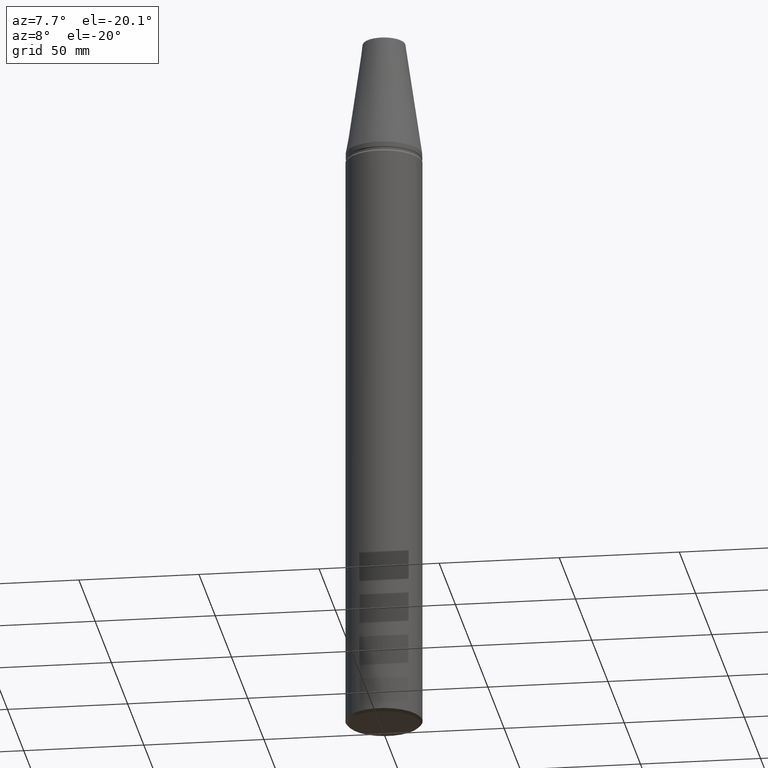
[diagram: clean part render]
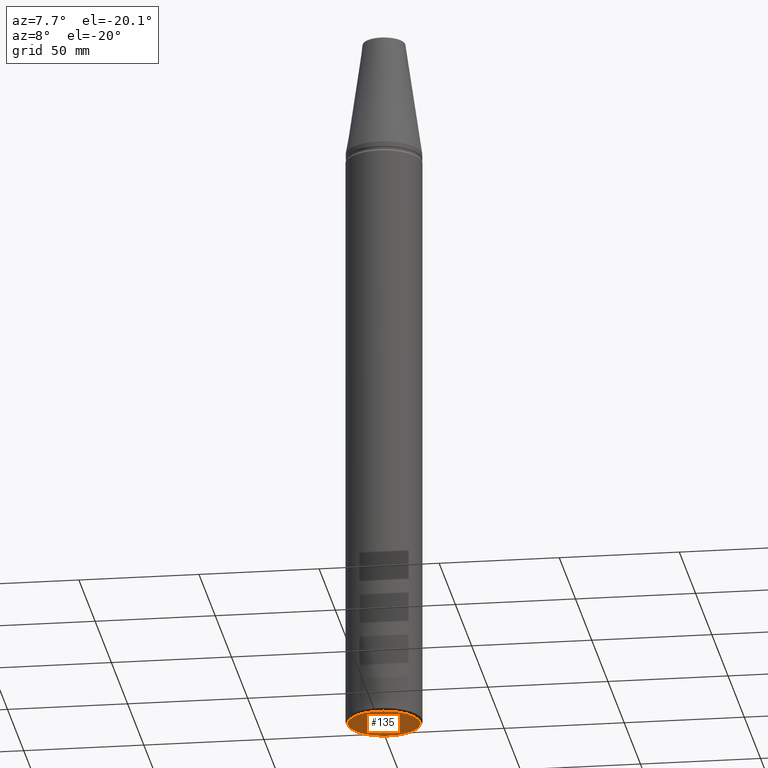
[diagram: same view with one face highlighted and labeled with its STEP entity id]
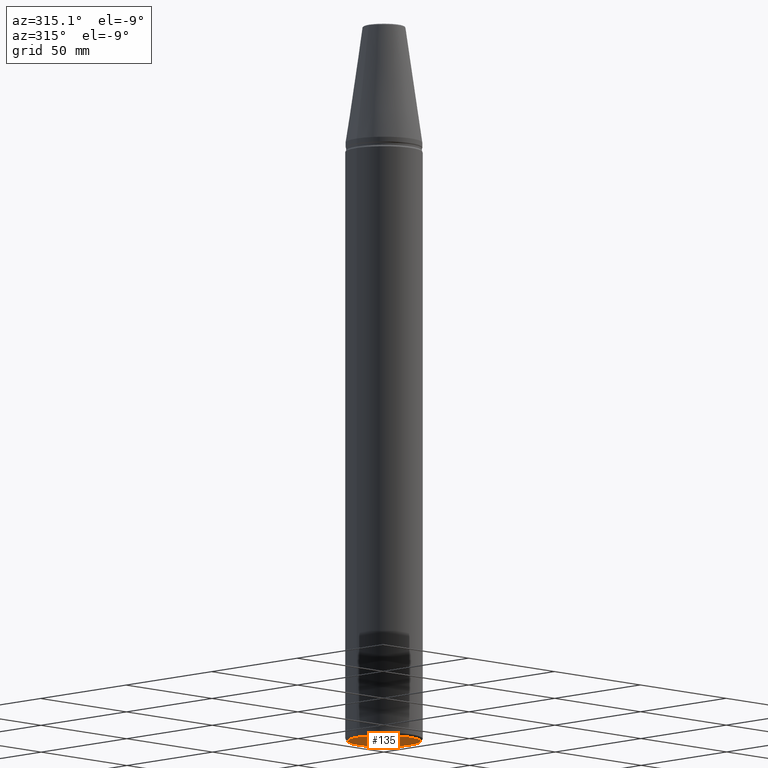
[diagram: same view with one face highlighted and labeled with its STEP entity id]
A machine part, auxiliary view. The second image highlights one B-rep face of the part: STEP entity #135.
A second angle (auxiliary view) of the same face is appended — the face is thin or edge-on in the first view.
In plain terms, the highlighted planar face has unit normal (0, -0, 1).
Its self-contained STEP definition (entity closure, byte-faithful):
#5 = AXIS2_PLACEMENT_3D ( 'NONE', #18, #308, #188 ) ;
#13 = CARTESIAN_POINT ( 'NONE',  ( 0.0000000000000000000, 15.00000000000012400, -250.0000000000000000 ) ) ;
#18 = CARTESIAN_POINT ( 'NONE',  ( 0.0000000000000000000, 0.0000000000000000000, -249.9999999999997700 ) ) ;
#29 = DIRECTION ( 'NONE',  ( 1.000000000000000000, 0.0000000000000000000, 0.0000000000000000000 ) ) ;
#101 = VERTEX_POINT ( 'NONE', #402 ) ;
#129 = PLANE ( 'NONE',  #449 ) ;
#135 = ADVANCED_FACE ( 'NONE', ( #208 ), #129, .F. ) ;
#137 = DIRECTION ( 'NONE',  ( 0.0000000000000000000, -0.0000000000000000000, 1.000000000000000000 ) ) ;
#139 = ORIENTED_EDGE ( 'NONE', *, *, #408, .F. ) ;
#188 = DIRECTION ( 'NONE',  ( 1.000000000000000000, 0.0000000000000000000, 0.0000000000000000000 ) ) ;
#202 = CARTESIAN_POINT ( 'NONE',  ( 15.00000000000012400, 0.0000000000000000000, -249.9999999999997700 ) ) ;
#208 = FACE_OUTER_BOUND ( 'NONE', #396, .T. ) ;
#213 = EDGE_CURVE ( 'NONE', #456, #101, #231, .T. ) ;
#228 = CARTESIAN_POINT ( 'NONE',  ( 0.0000000000000000000, 0.0000000000000000000, -249.9999999999997700 ) ) ;
#231 = CIRCLE ( 'NONE', #314, 15.00000000000012400 ) ;
#258 = DIRECTION ( 'NONE',  ( 1.000000000000000000, 0.0000000000000000000, 0.0000000000000000000 ) ) ;
#308 = DIRECTION ( 'NONE',  ( -0.0000000000000000000, -0.0000000000000000000, 1.000000000000000000 ) ) ;
#314 = AXIS2_PLACEMENT_3D ( 'NONE', #228, #344, #29 ) ;
#344 = DIRECTION ( 'NONE',  ( -0.0000000000000000000, -0.0000000000000000000, 1.000000000000000000 ) ) ;
#367 = ORIENTED_EDGE ( 'NONE', *, *, #213, .F. ) ;
#372 = CIRCLE ( 'NONE', #5, 15.00000000000012400 ) ;
#396 = EDGE_LOOP ( 'NONE', ( #367, #139 ) ) ;
#402 = CARTESIAN_POINT ( 'NONE',  ( -15.00000000000012400, 1.898202538678392400E-015, -249.9999999999997700 ) ) ;
#408 = EDGE_CURVE ( 'NONE', #101, #456, #372, .T. ) ;
#449 = AXIS2_PLACEMENT_3D ( 'NONE', #13, #137, #258 ) ;
#456 = VERTEX_POINT ( 'NONE', #202 ) ;